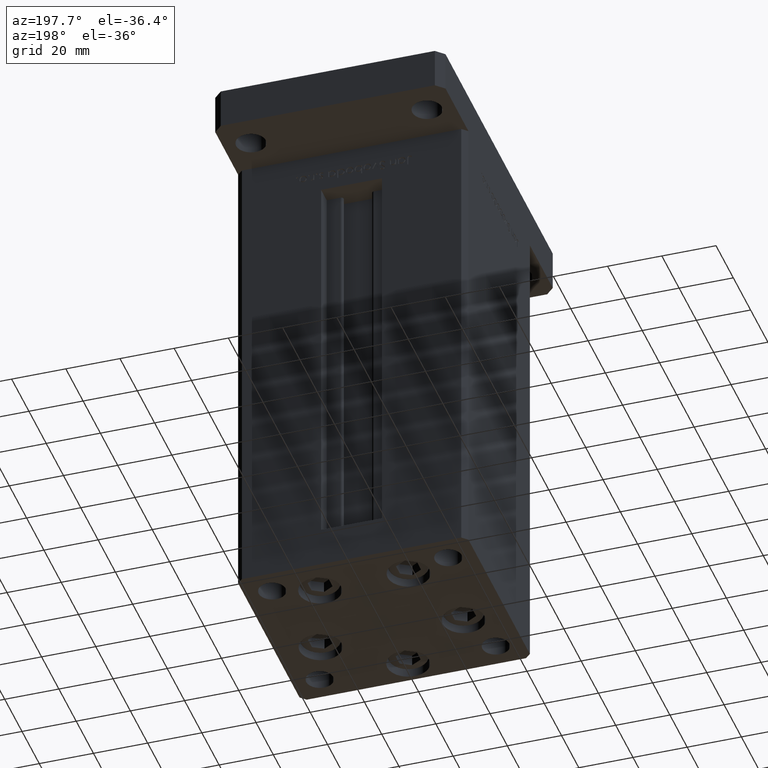
[diagram: clean part render]
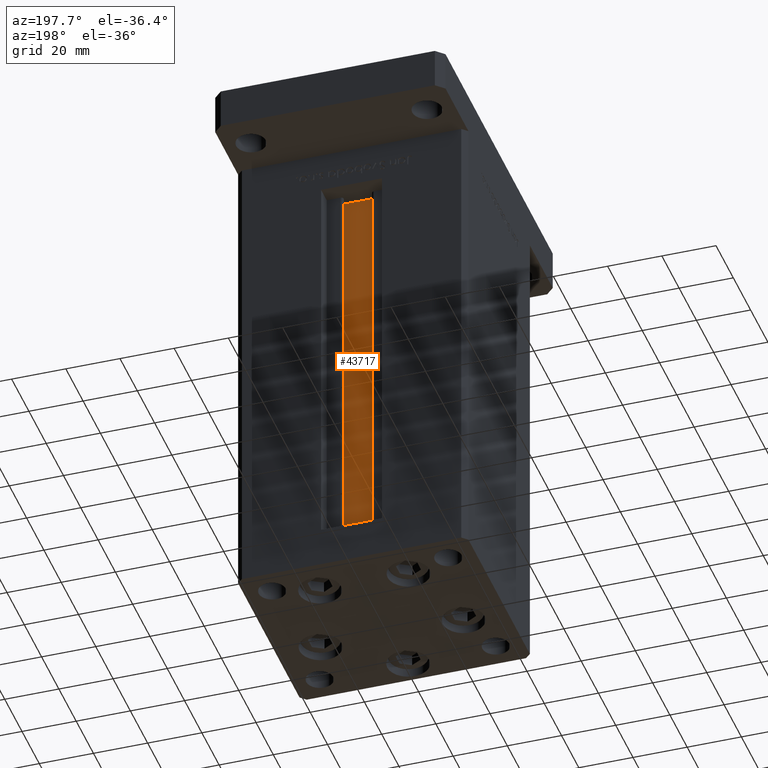
[diagram: same view with one face highlighted and labeled with its STEP entity id]
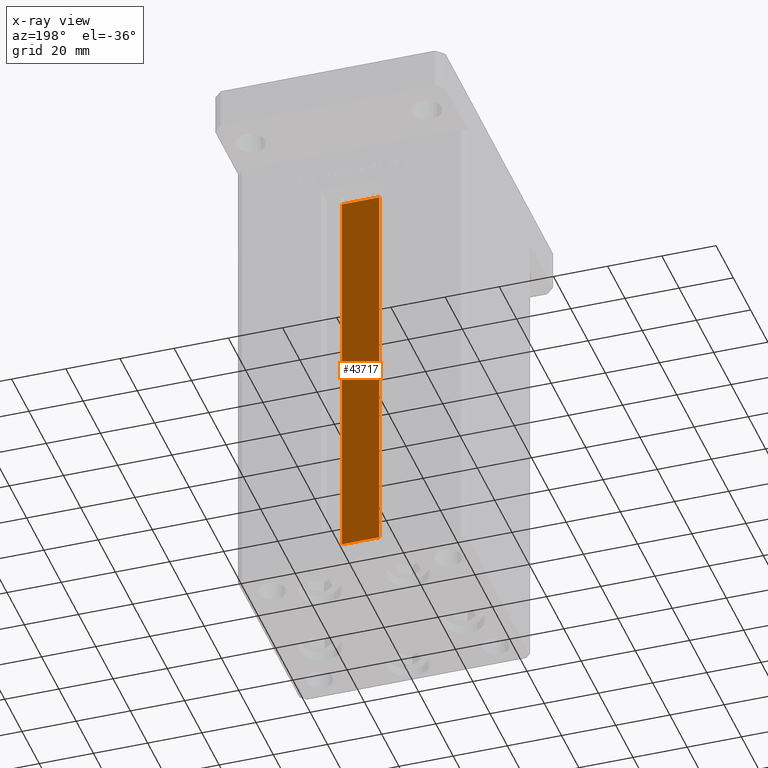
[diagram: x-ray of the same camera — body ghosted, the highlighted face saturated]
A machine part, auxiliary view. The second image highlights one B-rep face of the part: STEP entity #43717.
The next image is the same camera in x-ray: the body ghosted, the highlighted face saturated — about 0% of this face is hidden behind the body in this view.
In plain terms, the highlighted planar face has unit normal (0, -1, 0).
Its self-contained STEP definition (entity closure, byte-faithful):
#5371 = DIRECTION ( 'NONE',  ( 0.000000000000000000, 0.000000000000000000, -1.000000000000000000 ) ) ;
#9151 = LINE ( 'NONE', #16776, #44787 ) ;
#11806 = LINE ( 'NONE', #32398, #35322 ) ;
#11965 = VERTEX_POINT ( 'NONE', #17005 ) ;
#12911 = EDGE_CURVE ( 'NONE', #11965, #52599, #11806, .T. ) ;
#16776 = CARTESIAN_POINT ( 'NONE',  ( 6.876153656360465938, 26.99999999999986855, 0.000000000000000000 ) ) ;
#17005 = CARTESIAN_POINT ( 'NONE',  ( 6.876153656360465938, 26.99999999999986855, 148.5000000000000000 ) ) ;
#17863 = PLANE ( 'NONE',  #52470 ) ;
#18407 = CARTESIAN_POINT ( 'NONE',  ( 6.876153656360465938, 26.99999999999986855, 0.000000000000000000 ) ) ;
#18641 = ORIENTED_EDGE ( 'NONE', *, *, #12911, .F. ) ;
#20658 = CARTESIAN_POINT ( 'NONE',  ( -6.876153656360465938, 26.99999999999986855, 0.000000000000000000 ) ) ;
#20828 = ORIENTED_EDGE ( 'NONE', *, *, #52544, .F. ) ;
#20843 = DIRECTION ( 'NONE',  ( 1.000000000000000000, -0.000000000000000000, -0.000000000000000000 ) ) ;
#21012 = CARTESIAN_POINT ( 'NONE',  ( -6.876153656360465938, 26.99999999999986855, 0.000000000000000000 ) ) ;
#21375 = FACE_OUTER_BOUND ( 'NONE', #37879, .T. ) ;
#24522 = DIRECTION ( 'NONE',  ( -1.000000000000000000, 0.000000000000000000, 0.000000000000000000 ) ) ;
#24812 = EDGE_CURVE ( 'NONE', #34834, #11965, #29962, .T. ) ;
#24826 = DIRECTION ( 'NONE',  ( -0.000000000000000000, -0.000000000000000000, 1.000000000000000000 ) ) ;
#29962 = LINE ( 'NONE', #46532, #35526 ) ;
#32315 = DIRECTION ( 'NONE',  ( -0.000000000000000000, -0.000000000000000000, 1.000000000000000000 ) ) ;
#32398 = CARTESIAN_POINT ( 'NONE',  ( 0.000000000000000000, 26.99999999999986855, 148.5000000000000000 ) ) ;
#33553 = CARTESIAN_POINT ( 'NONE',  ( -6.876153656360465938, 26.99999999999986855, 148.5000000000000000 ) ) ;
#34096 = DIRECTION ( 'NONE',  ( 0.000000000000000000, -1.000000000000000000, -0.000000000000000000 ) ) ;
#34834 = VERTEX_POINT ( 'NONE', #37766 ) ;
#35322 = VECTOR ( 'NONE', #24522, 1000.000000000000000 ) ;
#35526 = VECTOR ( 'NONE', #24826, 1000.000000000000000 ) ;
#36704 = EDGE_CURVE ( 'NONE', #49800, #52599, #49402, .T. ) ;
#37013 = ORIENTED_EDGE ( 'NONE', *, *, #24812, .F. ) ;
#37766 = CARTESIAN_POINT ( 'NONE',  ( 6.876153656360465938, 26.99999999999986855, 0.000000000000000000 ) ) ;
#37879 = EDGE_LOOP ( 'NONE', ( #37013, #20828, #40838, #18641 ) ) ;
#40838 = ORIENTED_EDGE ( 'NONE', *, *, #36704, .T. ) ;
#43717 = ADVANCED_FACE ( 'NONE', ( #21375 ), #17863, .F. ) ;
#44787 = VECTOR ( 'NONE', #20843, 1000.000000000000000 ) ;
#46532 = CARTESIAN_POINT ( 'NONE',  ( 6.876153656360465938, 26.99999999999986855, 0.000000000000000000 ) ) ;
#47895 = VECTOR ( 'NONE', #32315, 1000.000000000000000 ) ;
#49402 = LINE ( 'NONE', #20658, #47895 ) ;
#49800 = VERTEX_POINT ( 'NONE', #21012 ) ;
#52470 = AXIS2_PLACEMENT_3D ( 'NONE', #18407, #34096, #5371 ) ;
#52544 = EDGE_CURVE ( 'NONE', #49800, #34834, #9151, .T. ) ;
#52599 = VERTEX_POINT ( 'NONE', #33553 ) ;